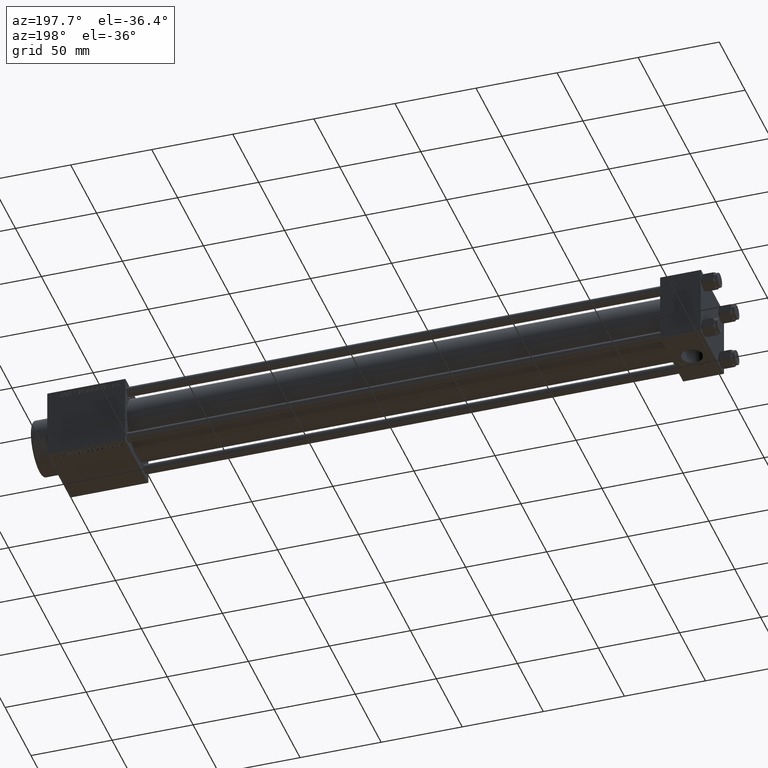
[diagram: clean part render]
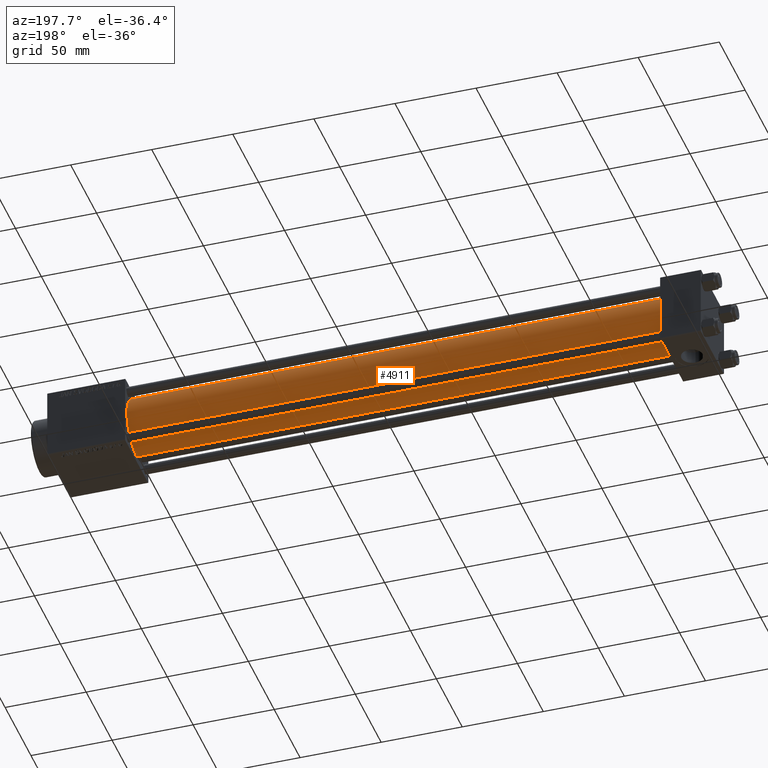
[diagram: same view with one face highlighted and labeled with its STEP entity id]
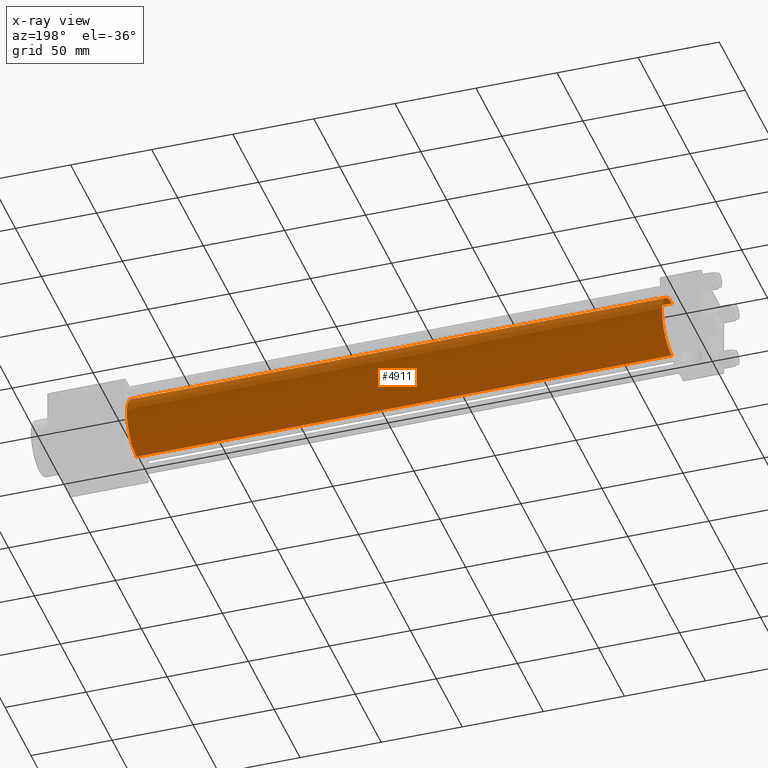
[diagram: x-ray of the same camera — body ghosted, the highlighted face saturated]
A machine part, auxiliary view. The second image highlights one B-rep face of the part: STEP entity #4911.
The next image is the same camera in x-ray: the body ghosted, the highlighted face saturated — about 0% of this face is hidden behind the body in this view.
In plain terms, the highlighted cylindrical surface (edge-blend (fillet) strip) has radius 19 mm, axis along (-1, -0, -0).
Its self-contained STEP definition (entity closure, byte-faithful):
#1504 = ORIENTED_EDGE ( 'NONE', *, *, #9400, .T. ) ;
#2741 = FACE_OUTER_BOUND ( 'NONE', #33313, .T. ) ;
#3097 = VERTEX_POINT ( 'NONE', #8131 ) ;
#3339 = EDGE_CURVE ( 'NONE', #34605, #3097, #11153, .T. ) ;
#3432 = CARTESIAN_POINT ( 'NONE',  ( 355.0000000000000568, -2.602085213965210642E-15, 19.00000000000000000 ) ) ;
#4911 = ADVANCED_FACE ( 'NONE', ( #2741 ), #49758, .T. ) ;
#6978 = CIRCLE ( 'NONE', #16801, 19.00000000000000000 ) ;
#7137 = DIRECTION ( 'NONE',  ( 0.000000000000000000, 0.000000000000000000, 1.000000000000000000 ) ) ;
#8131 = CARTESIAN_POINT ( 'NONE',  ( 25.00000000000002132, -2.602085213965210642E-15, 19.00000000000000000 ) ) ;
#9400 = EDGE_CURVE ( 'NONE', #48389, #10225, #47117, .T. ) ;
#10225 = VERTEX_POINT ( 'NONE', #46377 ) ;
#11011 = EDGE_CURVE ( 'NONE', #10225, #3097, #6978, .T. ) ;
#11153 = LINE ( 'NONE', #3432, #24071 ) ;
#11251 = AXIS2_PLACEMENT_3D ( 'NONE', #20707, #32784, #48944 ) ;
#11980 = DIRECTION ( 'NONE',  ( 1.000000000000000000, -0.000000000000000000, 0.000000000000000000 ) ) ;
#16705 = EDGE_CURVE ( 'NONE', #48389, #34605, #39135, .T. ) ;
#16801 = AXIS2_PLACEMENT_3D ( 'NONE', #19708, #11980, #7137 ) ;
#16942 = ORIENTED_EDGE ( 'NONE', *, *, #16705, .F. ) ;
#17890 = ORIENTED_EDGE ( 'NONE', *, *, #11011, .T. ) ;
#19708 = CARTESIAN_POINT ( 'NONE',  ( 25.00000000000002132, -2.602085213965210642E-15, 0.000000000000000000 ) ) ;
#20707 = CARTESIAN_POINT ( 'NONE',  ( 355.0000000000000568, -2.602085213965210642E-15, 0.000000000000000000 ) ) ;
#23245 = DIRECTION ( 'NONE',  ( -1.000000000000000000, -0.000000000000000000, -0.000000000000000000 ) ) ;
#24071 = VECTOR ( 'NONE', #27078, 1000.000000000000000 ) ;
#26376 = CARTESIAN_POINT ( 'NONE',  ( 355.0000000000000568, -2.602085213965210642E-15, 0.000000000000000000 ) ) ;
#27078 = DIRECTION ( 'NONE',  ( -1.000000000000000000, -0.000000000000000000, -0.000000000000000000 ) ) ;
#28069 = ORIENTED_EDGE ( 'NONE', *, *, #3339, .F. ) ;
#32784 = DIRECTION ( 'NONE',  ( 1.000000000000000000, 0.000000000000000000, 0.000000000000000000 ) ) ;
#33313 = EDGE_LOOP ( 'NONE', ( #16942, #1504, #17890, #28069 ) ) ;
#33960 = AXIS2_PLACEMENT_3D ( 'NONE', #26376, #41782, #42040 ) ;
#34605 = VERTEX_POINT ( 'NONE', #47391 ) ;
#39135 = CIRCLE ( 'NONE', #11251, 19.00000000000000000 ) ;
#39827 = VECTOR ( 'NONE', #23245, 1000.000000000000000 ) ;
#41782 = DIRECTION ( 'NONE',  ( -1.000000000000000000, -0.000000000000000000, -0.000000000000000000 ) ) ;
#42040 = DIRECTION ( 'NONE',  ( 0.000000000000000000, 0.000000000000000000, 1.000000000000000000 ) ) ;
#46377 = CARTESIAN_POINT ( 'NONE',  ( 25.00000000000002132, -2.752562955852396712E-16, -19.00000000000000000 ) ) ;
#46870 = CARTESIAN_POINT ( 'NONE',  ( 355.0000000000000568, -2.752562955852396712E-16, -19.00000000000000000 ) ) ;
#47117 = LINE ( 'NONE', #46870, #39827 ) ;
#47391 = CARTESIAN_POINT ( 'NONE',  ( 355.0000000000000568, -2.602085213965210642E-15, 19.00000000000000000 ) ) ;
#48389 = VERTEX_POINT ( 'NONE', #50546 ) ;
#48944 = DIRECTION ( 'NONE',  ( 0.000000000000000000, 0.000000000000000000, -1.000000000000000000 ) ) ;
#49758 = CYLINDRICAL_SURFACE ( 'NONE', #33960, 19.00000000000000000 ) ;
#50546 = CARTESIAN_POINT ( 'NONE',  ( 355.0000000000000568, -2.752562955852396712E-16, -19.00000000000000000 ) ) ;